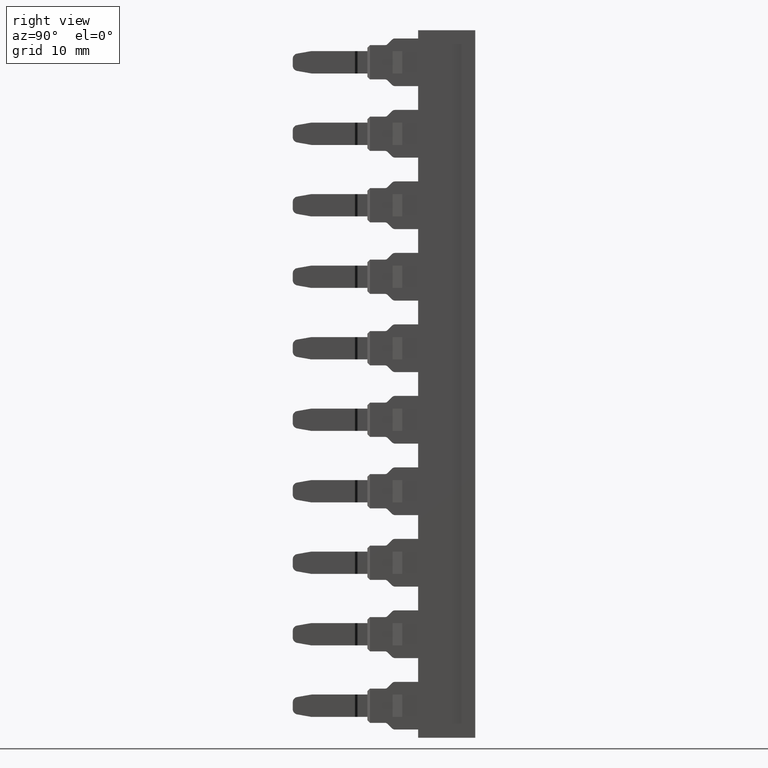
[diagram: clean part render]
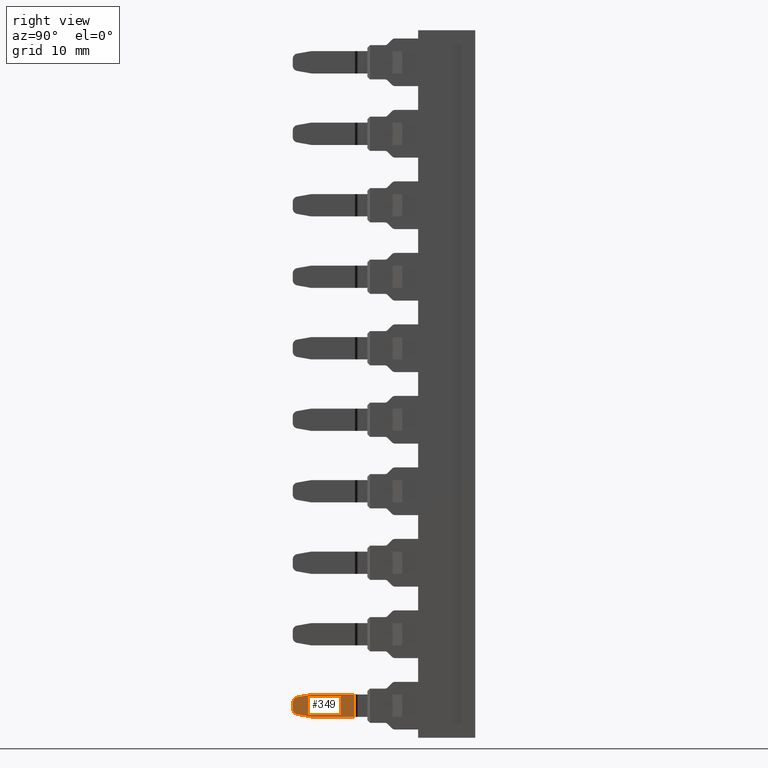
[diagram: same view with one face highlighted and labeled with its STEP entity id]
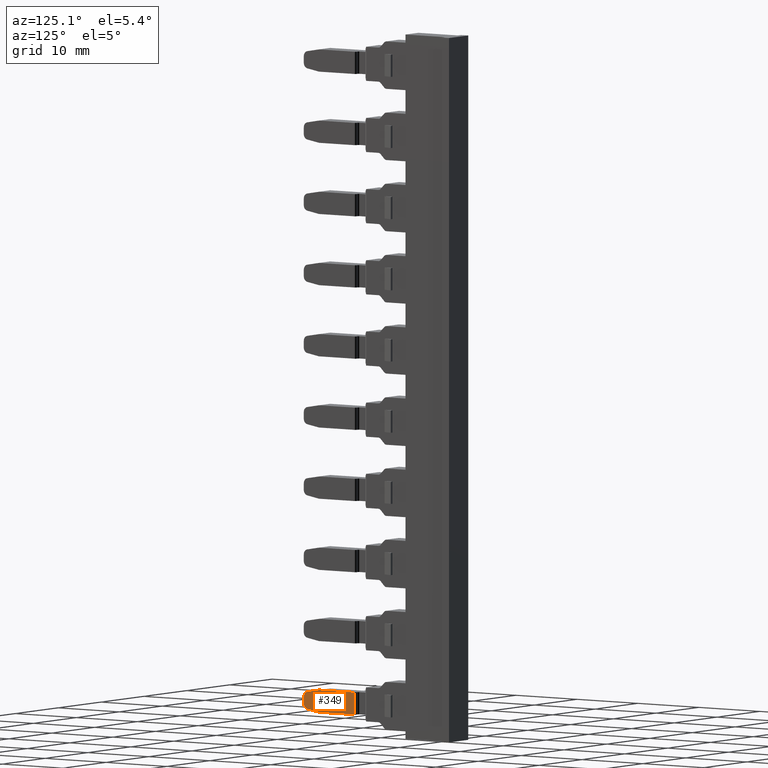
[diagram: same view with one face highlighted and labeled with its STEP entity id]
A machine part, right view. The second image highlights one B-rep face of the part: STEP entity #349.
A second angle (auxiliary view) of the same face is appended — the face is thin or edge-on in the first view.
In plain terms, the highlighted planar face has unit normal (-1, 0, -0).
Its self-contained STEP definition (entity closure, byte-faithful):
#349 = ADVANCED_FACE ( 'NONE', ( #12024 ), #12017, .F. ) ;
#943 = EDGE_CURVE ( 'NONE', #10537, #9709, #12706, .T. ) ;
#944 = EDGE_CURVE ( 'NONE', #10548, #9709, #12698, .T. ) ;
#972 = EDGE_CURVE ( 'NONE', #9733, #10536, #7574, .T. ) ;
#996 = EDGE_CURVE ( 'NONE', #10559, #10548, #12897, .T. ) ;
#998 = EDGE_CURVE ( 'NONE', #10559, #10564, #7535, .T. ) ;
#1046 = EDGE_CURVE ( 'NONE', #9733, #10564, #11148, .T. ) ;
#1050 = EDGE_CURVE ( 'NONE', #10537, #10539, #11145, .T. ) ;
#1054 = EDGE_CURVE ( 'NONE', #10539, #10536, #11125, .T. ) ;
#4926 = CARTESIAN_POINT ( 'NONE',  ( 112.0207181399671400, 225.8069065328590500, -34.82155057219964100 ) ) ;
#4946 = CARTESIAN_POINT ( 'NONE',  ( 112.0207181399673300, 234.0815789080013500, -36.79336337860399200 ) ) ;
#5074 = CARTESIAN_POINT ( 'NONE',  ( 112.0207181399673400, 228.3069065328603500, -33.79336337860416300 ) ) ;
#5079 = CARTESIAN_POINT ( 'NONE',  ( 112.0207181399671700, 226.3853528084922000, -34.13218514509105700 ) ) ;
#5082 = CARTESIAN_POINT ( 'NONE',  ( 112.0207181399671700, 226.3853528084920300, -36.45454161211733200 ) ) ;
#5089 = CARTESIAN_POINT ( 'NONE',  ( 112.0207181399671600, 225.8069065328590500, -35.76517618500881200 ) ) ;
#5092 = CARTESIAN_POINT ( 'NONE',  ( 112.0207181399674000, 234.0815789080013500, -33.79336337860407000 ) ) ;
#5096 = CARTESIAN_POINT ( 'NONE',  ( 112.0207181399672200, 228.3069065328588200, -36.79336337860396400 ) ) ;
#7476 = VECTOR ( 'NONE', #12729, 1000.000000000000000 ) ;
#7487 = VECTOR ( 'NONE', #12768, 1000.000000000000000 ) ;
#7535 = CIRCLE ( 'NONE', #7573, 0.7000000000000061700 ) ;
#7536 = AXIS2_PLACEMENT_3D ( 'NONE', #12838, #12856, #12850 ) ;
#7570 = VECTOR ( 'NONE', #12898, 1000.000000000000200 ) ;
#7573 = AXIS2_PLACEMENT_3D ( 'NONE', #12906, #12907, #12909 ) ;
#7574 = CIRCLE ( 'NONE', #7536, 0.7000000000000061700 ) ;
#7616 = VECTOR ( 'NONE', #11138, 1000.000000000000100 ) ;
#7633 = VECTOR ( 'NONE', #11139, 1000.000000000000000 ) ;
#7648 = VECTOR ( 'NONE', #11115, 1000.000000000000000 ) ;
#8009 = AXIS2_PLACEMENT_3D ( 'NONE', #12019, #11994, #12020 ) ;
#9515 = ORIENTED_EDGE ( 'NONE', *, *, #1054, .T. ) ;
#9521 = ORIENTED_EDGE ( 'NONE', *, *, #996, .T. ) ;
#9538 = ORIENTED_EDGE ( 'NONE', *, *, #943, .F. ) ;
#9549 = ORIENTED_EDGE ( 'NONE', *, *, #998, .F. ) ;
#9554 = ORIENTED_EDGE ( 'NONE', *, *, #972, .F. ) ;
#9557 = ORIENTED_EDGE ( 'NONE', *, *, #1050, .T. ) ;
#9568 = ORIENTED_EDGE ( 'NONE', *, *, #944, .T. ) ;
#9595 = ORIENTED_EDGE ( 'NONE', *, *, #1046, .T. ) ;
#9709 = VERTEX_POINT ( 'NONE', #4946 ) ;
#9733 = VERTEX_POINT ( 'NONE', #4926 ) ;
#10536 = VERTEX_POINT ( 'NONE', #5079 ) ;
#10537 = VERTEX_POINT ( 'NONE', #5092 ) ;
#10539 = VERTEX_POINT ( 'NONE', #5074 ) ;
#10548 = VERTEX_POINT ( 'NONE', #5096 ) ;
#10559 = VERTEX_POINT ( 'NONE', #5082 ) ;
#10564 = VERTEX_POINT ( 'NONE', #5089 ) ;
#11115 = DIRECTION ( 'NONE',  ( -0.0000000000000000000, -1.000000000000000000, -2.594839121907101700E-014 ) ) ;
#11125 = LINE ( 'NONE', #11152, #7616 ) ;
#11131 = CARTESIAN_POINT ( 'NONE',  ( 112.0207181399671400, 225.8069065328590500, -34.82155057219955600 ) ) ;
#11138 = DIRECTION ( 'NONE',  ( -0.0000000000000000000, -0.9848077530121975800, -0.1736481776669893700 ) ) ;
#11139 = DIRECTION ( 'NONE',  ( 1.027851262480033000E-041, -3.887992316742691900E-028, -1.000000000000000000 ) ) ;
#11145 = LINE ( 'NONE', #11149, #7648 ) ;
#11148 = LINE ( 'NONE', #11131, #7633 ) ;
#11149 = CARTESIAN_POINT ( 'NONE',  ( 112.0207181399674000, 238.6101602475991700, -33.79336337860398500 ) ) ;
#11152 = CARTESIAN_POINT ( 'NONE',  ( 112.0207181399672200, 228.3069065328603800, -33.79336337860399900 ) ) ;
#11994 = DIRECTION ( 'NONE',  ( -1.000000000000000000, 3.142629004551419200E-014, -7.193572994225524900E-015 ) ) ;
#12017 = PLANE ( 'NONE',  #8009 ) ;
#12019 = CARTESIAN_POINT ( 'NONE',  ( 112.0207181399673400, 234.7827890380841900, -22.32425274927413000 ) ) ;
#12020 = DIRECTION ( 'NONE',  ( -3.142629004551419200E-014, -1.000000000000000000, 0.0000000000000000000 ) ) ;
#12024 = FACE_OUTER_BOUND ( 'NONE', #13951, .T. ) ;
#12698 = LINE ( 'NONE', #12758, #7476 ) ;
#12706 = LINE ( 'NONE', #12760, #7487 ) ;
#12729 = DIRECTION ( 'NONE',  ( -0.0000000000000000000, 1.000000000000000000, -1.504573015594194000E-014 ) ) ;
#12758 = CARTESIAN_POINT ( 'NONE',  ( 112.0207181399672300, 238.6101602475991700, -36.79336337860409900 ) ) ;
#12760 = CARTESIAN_POINT ( 'NONE',  ( 112.0207181399674000, 234.0815789080013500, -33.79336337860404900 ) ) ;
#12768 = DIRECTION ( 'NONE',  ( 7.193572994225524900E-015, -5.441398086515932400E-029, -1.000000000000000000 ) ) ;
#12838 = CARTESIAN_POINT ( 'NONE',  ( 112.0207181399671300, 226.5069065328590300, -34.82155057219961200 ) ) ;
#12850 = DIRECTION ( 'NONE',  ( 1.982541115402047700E-014, -1.000000000000000000, 0.0000000000000000000 ) ) ;
#12856 = DIRECTION ( 'NONE',  ( -1.000000000000000000, -2.643655590711540000E-014, -7.193572994224081300E-015 ) ) ;
#12897 = LINE ( 'NONE', #12908, #7570 ) ;
#12898 = DIRECTION ( 'NONE',  ( -0.0000000000000000000, 0.9848077530122110200, -0.1736481776669129600 ) ) ;
#12906 = CARTESIAN_POINT ( 'NONE',  ( 112.0207181399671600, 226.5069065328590300, -35.76517618500880500 ) ) ;
#12907 = DIRECTION ( 'NONE',  ( -1.000000000000000000, -2.643655590711540000E-014, -7.193572994224081300E-015 ) ) ;
#12908 = CARTESIAN_POINT ( 'NONE',  ( 112.0207181399671700, 228.3069065328590700, -36.79336337860404200 ) ) ;
#12909 = DIRECTION ( 'NONE',  ( 1.982541115402047700E-014, -1.000000000000000000, 0.0000000000000000000 ) ) ;
#13951 = EDGE_LOOP ( 'NONE', ( #9538, #9557, #9515, #9554, #9595, #9549, #9521, #9568 ) ) ;